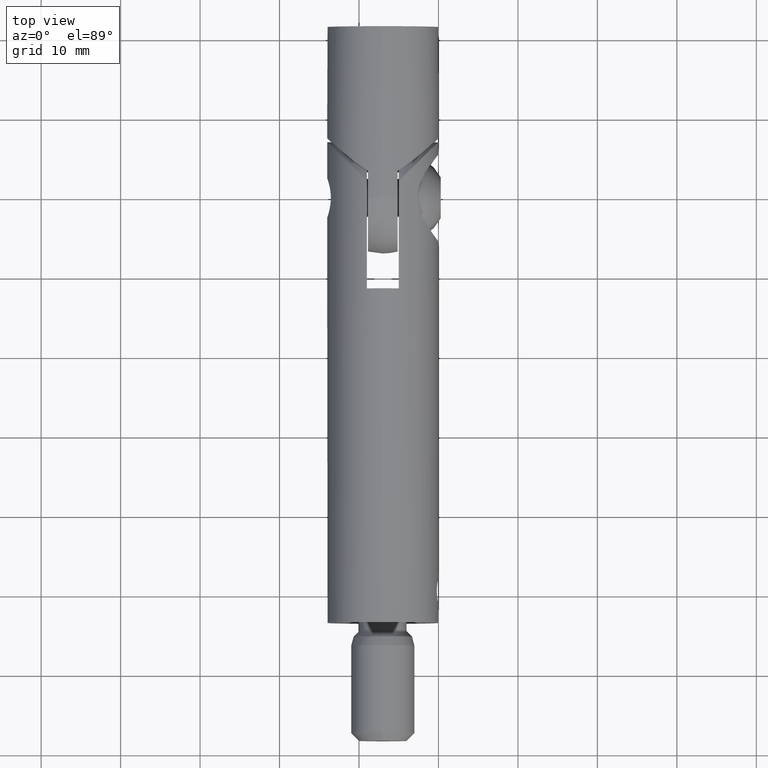
[diagram: clean part render]
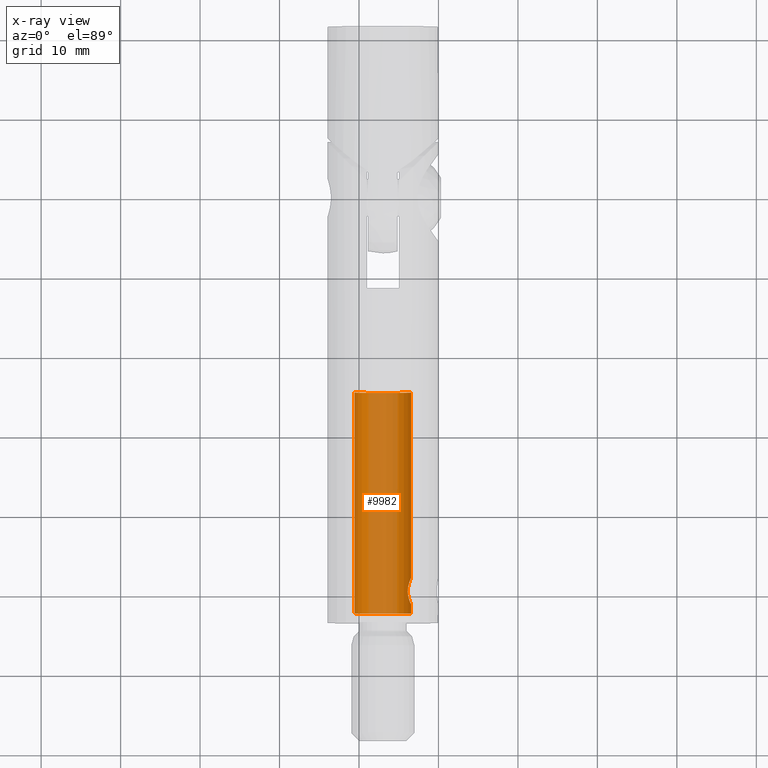
[diagram: x-ray — body ghosted, one internal face saturated and labeled with its STEP entity id]
A machine part, top view, then the same camera in x-ray: the body is ghosted and one INTERNAL B-rep face — a face not visible from any outside direction — is saturated and labeled: STEP entity #9982.
In plain terms, the highlighted cylindrical surface (edge-blend (fillet) strip) has radius 3.55 mm, axis along (-0, -1, -0).
Its self-contained STEP definition (entity closure, byte-faithful):
#84 = B_SPLINE_CURVE_WITH_KNOTS ( 'NONE', 3,
 ( #4876, #13194, #15769, #10435, #612, #9015, #3531, #1923, #10373, #6205, #11692, #13257, #4941, #14619, #7475, #11818 ),
 .UNSPECIFIED., .F., .F.,
 ( 4, 2, 2, 2, 2, 2, 2, 4 ),
 ( 0.005235132807128593100, 0.005562044304638311500, 0.005888955802148029800, 0.006542778797167467400, 0.006869690294677186600, 0.007196601792186905000, 0.007523513289696624200, 0.007850424787206343500 ),
 .UNSPECIFIED. ) ;
#612 = CARTESIAN_POINT ( 'NONE',  ( 3.510569947958238800, 2.436180924474799200, -0.5373827540479131400 ) ) ;
#706 = CARTESIAN_POINT ( 'NONE',  ( 3.510537206917026000, 5.563740917834278000, -0.5375095919208410200 ) ) ;
#770 = CARTESIAN_POINT ( 'NONE',  ( 3.299886474165675000, 5.008189434777635000, -1.310491256557836400 ) ) ;
#804 = ORIENTED_EDGE ( 'NONE', *, *, #14001, .F. ) ;
#843 = CARTESIAN_POINT ( 'NONE',  ( 3.544700256233122500, 5.638678950953002200, -0.2214463510430053600 ) ) ;
#976 = FACE_OUTER_BOUND ( 'NONE', #10876, .T. ) ;
#1018 = CARTESIAN_POINT ( 'NONE',  ( 3.550000000000003400, 29.00000000000000400, 0.0000000000000000000 ) ) ;
#1051 = CARTESIAN_POINT ( 'NONE',  ( 3.469446951953614200E-015, 29.00000000000000400, 0.0000000000000000000 ) ) ;
#1689 = ORIENTED_EDGE ( 'NONE', *, *, #17679, .T. ) ;
#1923 = CARTESIAN_POINT ( 'NONE',  ( 3.325943704251314200, 2.910545016601168800, -1.243764836135532200 ) ) ;
#2566 = CARTESIAN_POINT ( 'NONE',  ( 3.143246729100342800, 4.000000000000000000, -1.649999999999999000 ) ) ;
#2880 = DIRECTION ( 'NONE',  ( -1.156482317317871500E-016, -1.000000000000000000, 0.0000000000000000000 ) ) ;
#2989 = VECTOR ( 'NONE', #10341, 1000.000000000000000 ) ;
#3531 = CARTESIAN_POINT ( 'NONE',  ( 3.404647383740369500, 2.684072055306784100, -1.017981413491758600 ) ) ;
#3641 = CARTESIAN_POINT ( 'NONE',  ( 3.452142657300366400, 5.428374568804548200, -0.8328058844983845500 ) ) ;
#3710 = VERTEX_POINT ( 'NONE', #17749 ) ;
#4088 = ORIENTED_EDGE ( 'NONE', *, *, #4912, .T. ) ;
#4158 = VERTEX_POINT ( 'NONE', #5688 ) ;
#4236 = EDGE_CURVE ( 'NONE', #4158, #4797, #17307, .T. ) ;
#4513 = DIRECTION ( 'NONE',  ( -1.156482317317871700E-016, -1.000000000000000000, -0.0000000000000000000 ) ) ;
#4748 = AXIS2_PLACEMENT_3D ( 'NONE', #16237, #10616, #14785 ) ;
#4797 = VERTEX_POINT ( 'NONE', #6826 ) ;
#4798 = CARTESIAN_POINT ( 'NONE',  ( 3.379037105314890400, 5.242155291891336300, -1.091352623623968100 ) ) ;
#4876 = CARTESIAN_POINT ( 'NONE',  ( 3.550000000000000300, 2.350000000000001000, 3.127659939802163200E-022 ) ) ;
#4912 = EDGE_CURVE ( 'NONE', #9700, #3710, #5567, .T. ) ;
#4941 = CARTESIAN_POINT ( 'NONE',  ( 3.171230040136867600, 3.566354487666844700, -1.595741238366952500 ) ) ;
#5262 = CYLINDRICAL_SURFACE ( 'NONE', #16649, 3.549999999999999800 ) ;
#5336 = VERTEX_POINT ( 'NONE', #14551 ) ;
#5495 = CIRCLE ( 'NONE', #14274, 3.549999999999999800 ) ;
#5567 = B_SPLINE_CURVE_WITH_KNOTS ( 'NONE', 3,
 ( #10483, #6445, #16051, #14668, #9111, #770, #17432, #4798, #17314, #3641, #17374, #706, #10417, #843, #7767, #6317 ),
 .UNSPECIFIED., .F., .F.,
 ( 4, 2, 2, 2, 2, 2, 2, 4 ),
 ( 0.007850424787206343500, 0.008503674446900351100, 0.008830299276747354000, 0.009156924106594358700, 0.009483548936441363300, 0.009810173766288366300, 0.01013679859613536900, 0.01046342342598237400 ),
 .UNSPECIFIED. ) ;
#5688 = CARTESIAN_POINT ( 'NONE',  ( -3.549999999999996300, 29.00000000000000400, 4.347496136973102900E-016 ) ) ;
#5970 = VECTOR ( 'NONE', #13731, 1000.000000000000000 ) ;
#6205 = CARTESIAN_POINT ( 'NONE',  ( 3.250009837039102000, 3.169468172375704100, -1.429712586680653000 ) ) ;
#6317 = CARTESIAN_POINT ( 'NONE',  ( 3.550000000000000700, 5.649999999999995000, 0.0000000000000000000 ) ) ;
#6445 = CARTESIAN_POINT ( 'NONE',  ( 3.143246729100342800, 4.217742623378100600, -1.649999999999998800 ) ) ;
#6826 = CARTESIAN_POINT ( 'NONE',  ( -3.549999999999999800, 1.199999999999999700, 4.347496136973105800E-016 ) ) ;
#7249 = ORIENTED_EDGE ( 'NONE', *, *, #15090, .F. ) ;
#7475 = CARTESIAN_POINT ( 'NONE',  ( 3.143246729100341900, 3.891033135610703700, -1.649999999999998800 ) ) ;
#7767 = CARTESIAN_POINT ( 'NONE',  ( 3.550000000000000700, 5.649999999999995000, -0.1105477746860250200 ) ) ;
#7979 = DIRECTION ( 'NONE',  ( 1.000000000000000000, 0.0000000000000000000, 0.0000000000000000000 ) ) ;
#8972 = CARTESIAN_POINT ( 'NONE',  ( -3.549999999999996300, 29.00000000000000400, 4.347496136973102900E-016 ) ) ;
#9015 = CARTESIAN_POINT ( 'NONE',  ( 3.455668496908835200, 2.562168394281130600, -0.8380820812392763000 ) ) ;
#9111 = CARTESIAN_POINT ( 'NONE',  ( 3.250242126319146300, 4.831425927978724400, -1.429183052025352600 ) ) ;
#9323 = ORIENTED_EDGE ( 'NONE', *, *, #14153, .T. ) ;
#9700 = VERTEX_POINT ( 'NONE', #2566 ) ;
#9982 = ADVANCED_FACE ( 'NONE', ( #976 ), #5262, .F. ) ;
#10151 = ORIENTED_EDGE ( 'NONE', *, *, #4236, .T. ) ;
#10341 = DIRECTION ( 'NONE',  ( -1.156482317317871700E-016, -1.000000000000000000, -0.0000000000000000000 ) ) ;
#10373 = CARTESIAN_POINT ( 'NONE',  ( 3.299696159434548600, 2.992421754684465800, -1.310971882527198100 ) ) ;
#10417 = CARTESIAN_POINT ( 'NONE',  ( 3.524940670839772600, 5.595485985741527600, -0.4344325724310700300 ) ) ;
#10435 = CARTESIAN_POINT ( 'NONE',  ( 3.525023592937992500, 2.404330636189115000, -0.4338640145249735800 ) ) ;
#10483 = CARTESIAN_POINT ( 'NONE',  ( 3.143246729100342800, 4.000000000000000000, -1.649999999999999000 ) ) ;
#10616 = DIRECTION ( 'NONE',  ( -0.0000000000000000000, -1.000000000000000000, -0.0000000000000000000 ) ) ;
#10756 = LINE ( 'NONE', #15697, #13992 ) ;
#10876 = EDGE_LOOP ( 'NONE', ( #12623, #10151, #9323, #804, #1689, #4088, #7249 ) ) ;
#10940 = CARTESIAN_POINT ( 'NONE',  ( 3.550000000000003400, 29.00000000000000400, 0.0000000000000000000 ) ) ;
#10954 = DIRECTION ( 'NONE',  ( 1.000000000000000000, 0.0000000000000000000, 0.0000000000000000000 ) ) ;
#11601 = VERTEX_POINT ( 'NONE', #1018 ) ;
#11692 = CARTESIAN_POINT ( 'NONE',  ( 3.226474474617153200, 3.265454895137299900, -1.481369423121434300 ) ) ;
#11726 = CARTESIAN_POINT ( 'NONE',  ( 3.550000000000000300, 2.350000000000001000, 3.127659939802163200E-022 ) ) ;
#11818 = CARTESIAN_POINT ( 'NONE',  ( 3.143246729100342800, 4.000000000000000000, -1.649999999999999000 ) ) ;
#12131 = DIRECTION ( 'NONE',  ( -1.156482317317871700E-016, -1.000000000000000000, -0.0000000000000000000 ) ) ;
#12494 = LINE ( 'NONE', #10940, #5970 ) ;
#12623 = ORIENTED_EDGE ( 'NONE', *, *, #16803, .F. ) ;
#13194 = CARTESIAN_POINT ( 'NONE',  ( 3.550000000000001200, 2.350000000000001900, -0.1090599374548850000 ) ) ;
#13257 = CARTESIAN_POINT ( 'NONE',  ( 3.187229026363359400, 3.463485468775680900, -1.564021750687001800 ) ) ;
#13731 = DIRECTION ( 'NONE',  ( -1.156482317317871700E-016, -1.000000000000000000, -0.0000000000000000000 ) ) ;
#13992 = VECTOR ( 'NONE', #4513, 1000.000000000000000 ) ;
#14001 = EDGE_CURVE ( 'NONE', #16481, #5336, #12494, .T. ) ;
#14153 = EDGE_CURVE ( 'NONE', #4797, #5336, #14415, .T. ) ;
#14274 = AXIS2_PLACEMENT_3D ( 'NONE', #15121, #2880, #10954 ) ;
#14415 = CIRCLE ( 'NONE', #4748, 3.549999999999999800 ) ;
#14551 = CARTESIAN_POINT ( 'NONE',  ( 3.549999999999999800, 1.199999999999999700, 0.0000000000000000000 ) ) ;
#14619 = CARTESIAN_POINT ( 'NONE',  ( 3.149096011736629600, 3.780559452161294000, -1.638988827343196500 ) ) ;
#14668 = CARTESIAN_POINT ( 'NONE',  ( 3.226725471552569100, 4.735706968182306300, -1.480831090186602900 ) ) ;
#14785 = DIRECTION ( 'NONE',  ( 0.0000000000000000000, 0.0000000000000000000, 1.000000000000000000 ) ) ;
#15090 = EDGE_CURVE ( 'NONE', #11601, #3710, #10756, .T. ) ;
#15121 = CARTESIAN_POINT ( 'NONE',  ( 3.469446951953614200E-015, 29.00000000000000400, 0.0000000000000000000 ) ) ;
#15697 = CARTESIAN_POINT ( 'NONE',  ( 3.550000000000003400, 29.00000000000000400, 0.0000000000000000000 ) ) ;
#15769 = CARTESIAN_POINT ( 'NONE',  ( 3.544801440345632500, 2.361102004604423800, -0.2200274128210544800 ) ) ;
#16051 = CARTESIAN_POINT ( 'NONE',  ( 3.167516848762931900, 4.437256085447091700, -1.605555654133627300 ) ) ;
#16237 = CARTESIAN_POINT ( 'NONE',  ( 0.0000000000000000000, 1.199999999999999700, 0.0000000000000000000 ) ) ;
#16481 = VERTEX_POINT ( 'NONE', #11726 ) ;
#16649 = AXIS2_PLACEMENT_3D ( 'NONE', #1051, #12131, #7979 ) ;
#16803 = EDGE_CURVE ( 'NONE', #4158, #11601, #5495, .T. ) ;
#17307 = LINE ( 'NONE', #8972, #2989 ) ;
#17314 = CARTESIAN_POINT ( 'NONE',  ( 3.404711849221681700, 5.309590683643278000, -1.009352164201102300 ) ) ;
#17374 = CARTESIAN_POINT ( 'NONE',  ( 3.474120023669776000, 5.480177055565880200, -0.7370740150706834900 ) ) ;
#17432 = CARTESIAN_POINT ( 'NONE',  ( 3.326259367958422300, 5.090439999729459200, -1.242956525890825100 ) ) ;
#17679 = EDGE_CURVE ( 'NONE', #16481, #9700, #84, .T. ) ;
#17749 = CARTESIAN_POINT ( 'NONE',  ( 3.550000000000000700, 5.649999999999995000, 0.0000000000000000000 ) ) ;